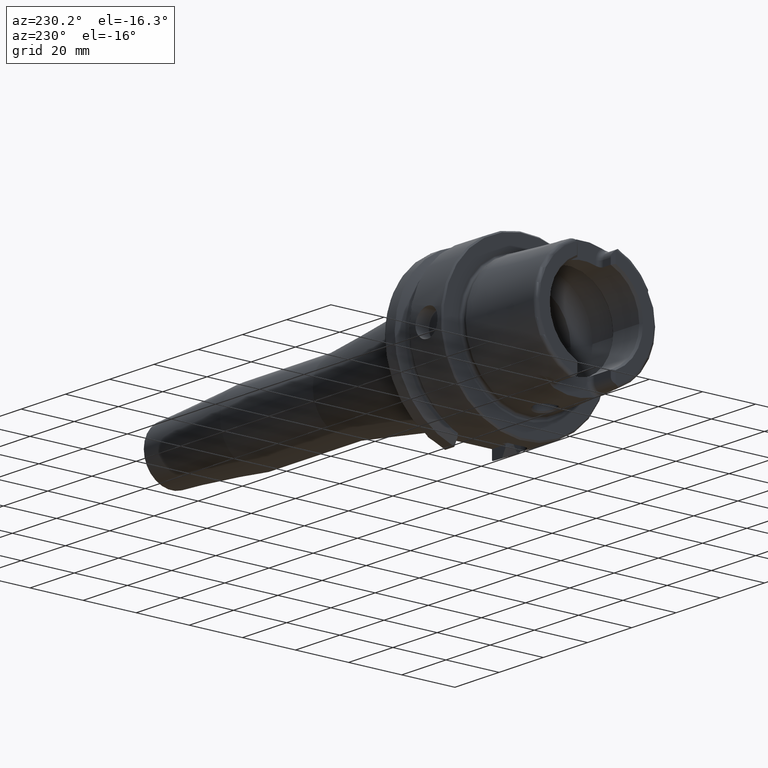
[diagram: clean part render]
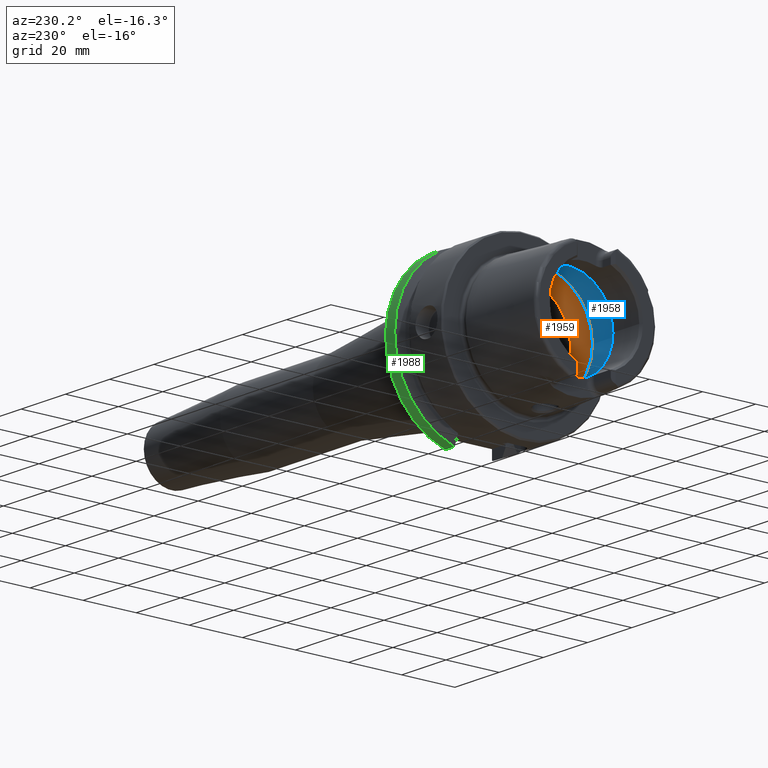
[diagram: same view with three faces highlighted in distinct colors, each labeled with its STEP entity id]
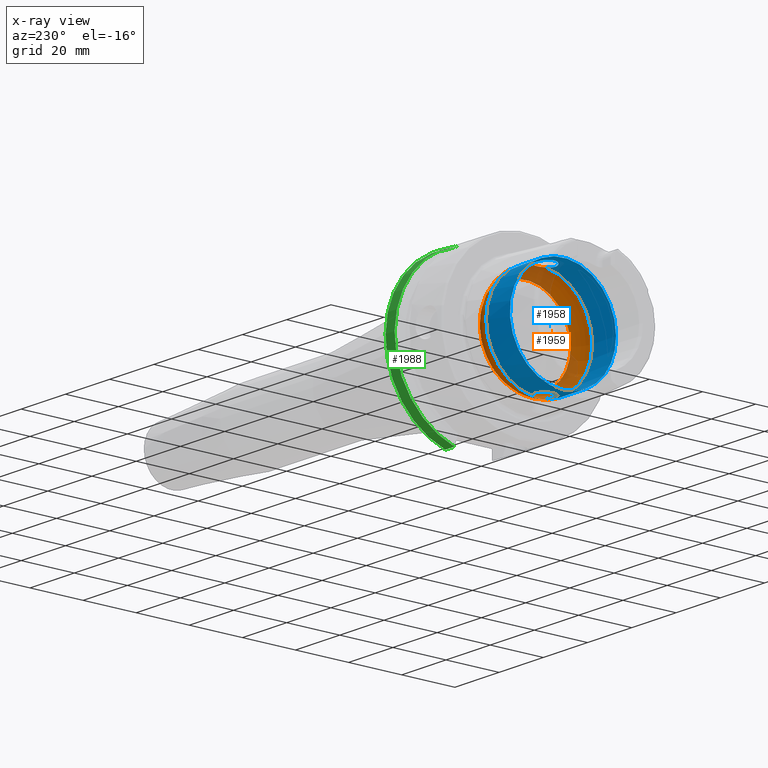
[diagram: x-ray of the same camera — body ghosted, the three highlighted faces saturated]
A machine part, auxiliary view with three faces highlighted in distinct colors.
The next image is the same camera in x-ray (body ghosted, the three faces saturated) — at least one of them is partly hidden behind the body in this view.
Their STEP definitions:

[orange] entity #1959 — the highlighted toroidal blend (fillet) surface has major radius 12 mm and minor (blend) radius 8 mm.
#49=B_SPLINE_CURVE_WITH_KNOTS('',3,(#3445,#3446,#3447,#3448,#3449,#3450,
#3451,#3452,#3453,#3454,#3455,#3456),.UNSPECIFIED.,.F.,.F.,(4,2,2,2,2,4),
(-0.560647090003115,-0.432465132423936,-0.371738630353782,-0.32053783623797,
-0.287500355516274,-0.280385270121909),.UNSPECIFIED.);
#51=B_SPLINE_CURVE_WITH_KNOTS('',3,(#3489,#3490,#3491,#3492,#3493,#3494,
#3495,#3496,#3497,#3498),.UNSPECIFIED.,.F.,.F.,(4,2,2,2,4),(-0.280385270121909,
-0.256917987419631,-0.21744735037608,-0.138661357565599,0.),
 .UNSPECIFIED.);
#54=B_SPLINE_CURVE_WITH_KNOTS('',3,(#3614,#3615,#3616,#3617,#3618,#3619,
#3620,#3621,#3622,#3623,#3624,#3625),.UNSPECIFIED.,.F.,.F.,(4,2,2,2,2,4),
(-0.560647090003256,-0.432465132424011,-0.371738630353825,-0.32053783623799,
-0.287500355516289,-0.280385270121924),.UNSPECIFIED.);
#56=B_SPLINE_CURVE_WITH_KNOTS('',3,(#3658,#3659,#3660,#3661,#3662,#3663,
#3664,#3665,#3666,#3667),.UNSPECIFIED.,.F.,.F.,(4,2,2,2,4),(-0.280385270121924,
-0.256917987419636,-0.217447350376074,-0.138661357565593,0.),
 .UNSPECIFIED.);
#445=FACE_OUTER_BOUND('',#567,.T.);
#567=EDGE_LOOP('',(#1461,#1462,#1463,#1464,#1465,#1466,#1467,#1468,#1469,
#1470,#1471));
#692=CIRCLE('',#2139,20.);
#695=CIRCLE('',#2142,20.);
#696=CIRCLE('',#2143,20.);
#697=CIRCLE('',#2145,17.);
#698=CIRCLE('',#2146,17.);
#699=CIRCLE('',#2147,8.);
#859=VERTEX_POINT('',#3442);
#860=VERTEX_POINT('',#3444);
#861=VERTEX_POINT('',#3457);
#864=VERTEX_POINT('',#3612);
#865=VERTEX_POINT('',#3613);
#866=VERTEX_POINT('',#3626);
#867=VERTEX_POINT('',#3670);
#870=VERTEX_POINT('',#3680);
#871=VERTEX_POINT('',#3681);
#1083=EDGE_CURVE('',#860,#859,#49,.T.);
#1085=EDGE_CURVE('',#859,#861,#51,.T.);
#1089=EDGE_CURVE('',#864,#865,#54,.T.);
#1091=EDGE_CURVE('',#865,#866,#56,.T.);
#1093=EDGE_CURVE('',#867,#864,#692,.T.);
#1097=EDGE_CURVE('',#861,#867,#695,.T.);
#1098=EDGE_CURVE('',#866,#860,#696,.T.);
#1099=EDGE_CURVE('',#870,#871,#697,.T.);
#1100=EDGE_CURVE('',#871,#870,#698,.T.);
#1101=EDGE_CURVE('',#871,#859,#699,.T.);
#1461=ORIENTED_EDGE('',*,*,#1099,.F.);
#1462=ORIENTED_EDGE('',*,*,#1100,.F.);
#1463=ORIENTED_EDGE('',*,*,#1101,.T.);
#1464=ORIENTED_EDGE('',*,*,#1085,.T.);
#1465=ORIENTED_EDGE('',*,*,#1097,.T.);
#1466=ORIENTED_EDGE('',*,*,#1093,.T.);
#1467=ORIENTED_EDGE('',*,*,#1089,.T.);
#1468=ORIENTED_EDGE('',*,*,#1091,.T.);
#1469=ORIENTED_EDGE('',*,*,#1098,.T.);
#1470=ORIENTED_EDGE('',*,*,#1083,.T.);
#1471=ORIENTED_EDGE('',*,*,#1101,.F.);
#1907=TOROIDAL_SURFACE('',#2144,12.,8.);
#1959=ADVANCED_FACE('',(#445),#1907,.F.);
#2139=AXIS2_PLACEMENT_3D('',#3671,#2500,#2501);
#2142=AXIS2_PLACEMENT_3D('',#3677,#2507,#2508);
#2143=AXIS2_PLACEMENT_3D('',#3678,#2509,#2510);
#2144=AXIS2_PLACEMENT_3D('',#3679,#2511,#2512);
#2145=AXIS2_PLACEMENT_3D('',#3682,#2513,#2514);
#2146=AXIS2_PLACEMENT_3D('',#3683,#2515,#2516);
#2147=AXIS2_PLACEMENT_3D('',#3684,#2517,#2518);
#2500=DIRECTION('center_axis',(-1.,0.,0.));
#2501=DIRECTION('ref_axis',(0.,0.,1.));
#2507=DIRECTION('center_axis',(-1.,0.,0.));
#2508=DIRECTION('ref_axis',(0.,0.,1.));
#2509=DIRECTION('center_axis',(-1.,0.,0.));
#2510=DIRECTION('ref_axis',(0.,0.,1.));
#2511=DIRECTION('center_axis',(-1.,0.,0.));
#2512=DIRECTION('ref_axis',(0.,0.,1.));
#2513=DIRECTION('center_axis',(-1.,0.,0.));
#2514=DIRECTION('ref_axis',(0.,0.,1.));
#2515=DIRECTION('center_axis',(-1.,0.,0.));
#2516=DIRECTION('ref_axis',(0.,0.,1.));
#2517=DIRECTION('center_axis',(0.,1.,-1.22464679914735E-16));
#2518=DIRECTION('ref_axis',(0.,-1.22464679914735E-16,-1.));
#3442=CARTESIAN_POINT('',(-5.25,3.07683831259085E-16,-19.9378825251564));
#3444=CARTESIAN_POINT('',(-6.2449979983984,2.54410376580264,-19.8375284758165));
#3445=CARTESIAN_POINT('Ctrl Pts',(-6.2449979983984,2.54410376580263,-19.8375284758165));
#3446=CARTESIAN_POINT('Ctrl Pts',(-5.9563832733696,2.23156378381208,-19.877610794847));
#3447=CARTESIAN_POINT('Ctrl Pts',(-5.72238184052007,1.87139505615745,-19.9007586679726));
#3448=CARTESIAN_POINT('Ctrl Pts',(-5.47415257397377,1.29299577523533,-19.9221291461079));
#3449=CARTESIAN_POINT('Ctrl Pts',(-5.40951125063364,1.10084807786171,-19.9269865934584));
#3450=CARTESIAN_POINT('Ctrl Pts',(-5.31953029252225,0.738763665580492,-19.9333991732415));
#3451=CARTESIAN_POINT('Ctrl Pts',(-5.28971989928313,0.57048989328573,-19.9353426103026));
#3452=CARTESIAN_POINT('Ctrl Pts',(-5.25970604483208,0.291260075331645,-19.9372753146995));
#3453=CARTESIAN_POINT('Ctrl Pts',(-5.25276504295341,0.181279004510485,-19.9377089305339));
#3454=CARTESIAN_POINT('Ctrl Pts',(-5.25022501552319,0.0474369436209427,
-19.9378684144199));
#3455=CARTESIAN_POINT('Ctrl Pts',(-5.25,0.0237178817918345,-19.9378825251564));
#3456=CARTESIAN_POINT('Ctrl Pts',(-5.25,1.73633857888389E-16,-19.9378825251564));
#3457=CARTESIAN_POINT('',(-6.2449979983984,-2.54410376580264,-19.8375284758165));
#3489=CARTESIAN_POINT('Ctrl Pts',(-5.25,1.73633857888389E-16,-19.9378825251564));
#3490=CARTESIAN_POINT('Ctrl Pts',(-5.25,-0.0782273446147222,-19.9378825251564));
#3491=CARTESIAN_POINT('Ctrl Pts',(-5.25244785081342,-0.15644185230388,-19.9377296492436));
#3492=CARTESIAN_POINT('Ctrl Pts',(-5.26557067654327,-0.365860616871457,
-19.9368989370107));
#3493=CARTESIAN_POINT('Ctrl Pts',(-5.2807081654794,-0.496671474530444,-19.9359382432917));
#3494=CARTESIAN_POINT('Ctrl Pts',(-5.34656166936447,-0.885366242555149,
-19.9315392091305));
#3495=CARTESIAN_POINT('Ctrl Pts',(-5.41752174824152,-1.13897710923821,-19.9266508951874));
#3496=CARTESIAN_POINT('Ctrl Pts',(-5.68473945553282,-1.81246400136134,-19.9044561094296));
#3497=CARTESIAN_POINT('Ctrl Pts',(-5.93280828188796,-2.20603449935731,-19.880884849314));
#3498=CARTESIAN_POINT('Ctrl Pts',(-6.2449979983984,-2.54410376580263,-19.8375284758165));
#3612=CARTESIAN_POINT('',(-6.2449979983984,-2.54410376580264,19.8375284758165));
#3613=CARTESIAN_POINT('',(-5.25,4.81156178856766E-16,19.9378825251564));
#3614=CARTESIAN_POINT('Ctrl Pts',(-6.2449979983984,-2.54410376580264,19.8375284758165));
#3615=CARTESIAN_POINT('Ctrl Pts',(-5.9563832733696,-2.23156378381209,19.877610794847));
#3616=CARTESIAN_POINT('Ctrl Pts',(-5.72238184052007,-1.87139505615746,19.9007586679726));
#3617=CARTESIAN_POINT('Ctrl Pts',(-5.47415257397376,-1.29299577523533,19.9221291461079));
#3618=CARTESIAN_POINT('Ctrl Pts',(-5.40951125063363,-1.10084807786172,19.9269865934584));
#3619=CARTESIAN_POINT('Ctrl Pts',(-5.31953029252225,-0.738763665580501,
19.9333991732415));
#3620=CARTESIAN_POINT('Ctrl Pts',(-5.28971989928313,-0.570489893285745,
19.9353426103026));
#3621=CARTESIAN_POINT('Ctrl Pts',(-5.25970604483207,-0.291260075331669,
19.9372753146995));
#3622=CARTESIAN_POINT('Ctrl Pts',(-5.2527650429534,-0.181279004510531,19.9377089305339));
#3623=CARTESIAN_POINT('Ctrl Pts',(-5.25022501552319,-0.0474369436209401,
19.9378684144199));
#3624=CARTESIAN_POINT('Ctrl Pts',(-5.25,-0.0237178817918311,19.9378825251564));
#3625=CARTESIAN_POINT('Ctrl Pts',(-5.25,5.15920899939407E-16,19.9378825251564));
#3626=CARTESIAN_POINT('',(-6.2449979983984,2.54410376580264,19.8375284758165));
#3658=CARTESIAN_POINT('Ctrl Pts',(-5.25,5.15920899939407E-16,19.9378825251564));
#3659=CARTESIAN_POINT('Ctrl Pts',(-5.25,0.0782273446147462,19.9378825251564));
#3660=CARTESIAN_POINT('Ctrl Pts',(-5.25244785081342,0.156441852303891,19.9377296492436));
#3661=CARTESIAN_POINT('Ctrl Pts',(-5.26557067654326,0.36586061687142,19.9368989370107));
#3662=CARTESIAN_POINT('Ctrl Pts',(-5.28070816547939,0.496671474530425,19.9359382432917));
#3663=CARTESIAN_POINT('Ctrl Pts',(-5.34656166936446,0.885366242555101,19.9315392091305));
#3664=CARTESIAN_POINT('Ctrl Pts',(-5.41752174824151,1.13897710923819,19.9266508951874));
#3665=CARTESIAN_POINT('Ctrl Pts',(-5.68473945553283,1.81246400136138,19.9044561094296));
#3666=CARTESIAN_POINT('Ctrl Pts',(-5.93280828188797,2.20603449935733,19.880884849314));
#3667=CARTESIAN_POINT('Ctrl Pts',(-6.2449979983984,2.54410376580264,19.8375284758165));
#3670=CARTESIAN_POINT('',(-6.2449979983984,-20.,2.44929359829471E-15));
#3671=CARTESIAN_POINT('Origin',(-6.2449979983984,0.,0.));
#3677=CARTESIAN_POINT('Origin',(-6.2449979983984,0.,0.));
#3678=CARTESIAN_POINT('Origin',(-6.2449979983984,0.,0.));
#3679=CARTESIAN_POINT('Origin',(-6.2449979983984,0.,0.));
#3680=CARTESIAN_POINT('',(0.,-17.,2.0818995585505E-15));
#3681=CARTESIAN_POINT('',(0.,-2.0818995585505E-15,-17.));
#3682=CARTESIAN_POINT('Origin',(0.,0.,0.));
#3683=CARTESIAN_POINT('Origin',(0.,0.,0.));
#3684=CARTESIAN_POINT('Origin',(-6.2449979983984,-1.46957615897682E-15,
-12.));

[blue] entity #1958 — the highlighted cylindrical surface (bore or boss wall) has radius 20 mm, axis along (-1, 0, 0).
#50=B_SPLINE_CURVE_WITH_KNOTS('',3,(#3458,#3459,#3460,#3461,#3462,#3463,
#3464,#3465,#3466,#3467,#3468,#3469,#3470,#3471,#3472,#3473,#3474,#3475,
#3476,#3477,#3478,#3479,#3480,#3481,#3482,#3483,#3484,#3485,#3486,#3487,
#3488),.UNSPECIFIED.,.F.,.F.,(4,2,2,2,2,2,2,2,2,2,2,3,2,2,4),(-1.43107314142755,
-1.4161913421645,-1.27456976724955,-1.1329481923346,-0.991326617419658,
-0.849705042504712,-0.708089569336007,-0.566474096167302,-0.424858622998598,
-0.283243149829893,-0.141621574914946,0.,0.141621574914946,0.283243149829893,
0.298124949100151),.UNSPECIFIED.);
#55=B_SPLINE_CURVE_WITH_KNOTS('',3,(#3627,#3628,#3629,#3630,#3631,#3632,
#3633,#3634,#3635,#3636,#3637,#3638,#3639,#3640,#3641,#3642,#3643,#3644,
#3645,#3646,#3647,#3648,#3649,#3650,#3651,#3652,#3653,#3654,#3655,#3656,
#3657),.UNSPECIFIED.,.F.,.F.,(4,2,2,3,2,2,2,2,2,2,2,2,2,2,4),(-0.298124949092949,
-0.283243149829893,-0.141621574914946,0.,0.141621574914946,0.283243149829893,
0.424858622998598,0.566474096167302,0.708089569336007,0.849705042504712,
0.991326617419658,1.1329481923346,1.27456976724955,1.4161913421645,1.43107314143475),
 .UNSPECIFIED.);
#108=CYLINDRICAL_SURFACE('',#2138,20.);
#227=LINE('',#3673,#334);
#334=VECTOR('',#2502,20.);
#444=FACE_OUTER_BOUND('',#566,.T.);
#566=EDGE_LOOP('',(#1452,#1453,#1454,#1455,#1456,#1457,#1458,#1459,#1460));
#692=CIRCLE('',#2139,20.);
#693=CIRCLE('',#2140,20.);
#694=CIRCLE('',#2141,20.);
#695=CIRCLE('',#2142,20.);
#696=CIRCLE('',#2143,20.);
#860=VERTEX_POINT('',#3444);
#861=VERTEX_POINT('',#3457);
#864=VERTEX_POINT('',#3612);
#866=VERTEX_POINT('',#3626);
#867=VERTEX_POINT('',#3670);
#868=VERTEX_POINT('',#3672);
#869=VERTEX_POINT('',#3674);
#1084=EDGE_CURVE('',#861,#860,#50,.T.);
#1090=EDGE_CURVE('',#866,#864,#55,.T.);
#1093=EDGE_CURVE('',#867,#864,#692,.T.);
#1094=EDGE_CURVE('',#867,#868,#227,.T.);
#1095=EDGE_CURVE('',#868,#869,#693,.T.);
#1096=EDGE_CURVE('',#869,#868,#694,.T.);
#1097=EDGE_CURVE('',#861,#867,#695,.T.);
#1098=EDGE_CURVE('',#866,#860,#696,.T.);
#1452=ORIENTED_EDGE('',*,*,#1090,.T.);
#1453=ORIENTED_EDGE('',*,*,#1093,.F.);
#1454=ORIENTED_EDGE('',*,*,#1094,.T.);
#1455=ORIENTED_EDGE('',*,*,#1095,.T.);
#1456=ORIENTED_EDGE('',*,*,#1096,.T.);
#1457=ORIENTED_EDGE('',*,*,#1094,.F.);
#1458=ORIENTED_EDGE('',*,*,#1097,.F.);
#1459=ORIENTED_EDGE('',*,*,#1084,.T.);
#1460=ORIENTED_EDGE('',*,*,#1098,.F.);
#1958=ADVANCED_FACE('',(#444),#108,.F.);
#2138=AXIS2_PLACEMENT_3D('',#3669,#2498,#2499);
#2139=AXIS2_PLACEMENT_3D('',#3671,#2500,#2501);
#2140=AXIS2_PLACEMENT_3D('',#3675,#2503,#2504);
#2141=AXIS2_PLACEMENT_3D('',#3676,#2505,#2506);
#2142=AXIS2_PLACEMENT_3D('',#3677,#2507,#2508);
#2143=AXIS2_PLACEMENT_3D('',#3678,#2509,#2510);
#2498=DIRECTION('center_axis',(-1.,0.,0.));
#2499=DIRECTION('ref_axis',(0.,1.,0.));
#2500=DIRECTION('center_axis',(-1.,0.,0.));
#2501=DIRECTION('ref_axis',(0.,0.,1.));
#2502=DIRECTION('',(-1.,0.,0.));
#2503=DIRECTION('center_axis',(-1.,0.,0.));
#2504=DIRECTION('ref_axis',(0.,0.,1.));
#2505=DIRECTION('center_axis',(-1.,0.,0.));
#2506=DIRECTION('ref_axis',(0.,0.,1.));
#2507=DIRECTION('center_axis',(-1.,0.,0.));
#2508=DIRECTION('ref_axis',(0.,0.,1.));
#2509=DIRECTION('center_axis',(-1.,0.,0.));
#2510=DIRECTION('ref_axis',(0.,0.,1.));
#3444=CARTESIAN_POINT('',(-6.2449979983984,2.54410376580264,-19.8375284758165));
#3457=CARTESIAN_POINT('',(-6.2449979983984,-2.54410376580264,-19.8375284758165));
#3458=CARTESIAN_POINT('Ctrl Pts',(-6.2449979983984,-2.54410376580264,-19.8375284758165));
#3459=CARTESIAN_POINT('Ctrl Pts',(-6.27894943420456,-2.58086966932454,-19.8328133585216));
#3460=CARTESIAN_POINT('Ctrl Pts',(-6.31342869219743,-2.61672955109653,-19.8281105439642));
#3461=CARTESIAN_POINT('Ctrl Pts',(-6.68067160381732,-2.98397246271642,-19.7789868876592));
#3462=CARTESIAN_POINT('Ctrl Pts',(-7.10159661632629,-3.27238367725626,-19.731429741537));
#3463=CARTESIAN_POINT('Ctrl Pts',(-8.0251754070192,-3.65542701546408,-19.6640704965084));
#3464=CARTESIAN_POINT('Ctrl Pts',(-8.52792808361685,-3.75,-19.6452920568771));
#3465=CARTESIAN_POINT('Ctrl Pts',(-9.47207191638316,-3.75,-19.6452920568771));
#3466=CARTESIAN_POINT('Ctrl Pts',(-9.97482459298081,-3.65542701546408,-19.6640704965084));
#3467=CARTESIAN_POINT('Ctrl Pts',(-10.8984033836737,-3.27238367725626,-19.731429741537));
#3468=CARTESIAN_POINT('Ctrl Pts',(-11.3193283961827,-2.98397246271642,-19.7789868876592));
#3469=CARTESIAN_POINT('Ctrl Pts',(-11.9839581446669,-2.31934271423217,-19.8678900149943));
#3470=CARTESIAN_POINT('Ctrl Pts',(-12.2723805817074,-1.89841159537053,-19.9150796801946));
#3471=CARTESIAN_POINT('Ctrl Pts',(-12.6554320620407,-0.974811677040414,
-19.9815942165963));
#3472=CARTESIAN_POINT('Ctrl Pts',(-12.75,-0.472051577229017,-20.));
#3473=CARTESIAN_POINT('Ctrl Pts',(-12.75,0.472051577229015,-20.));
#3474=CARTESIAN_POINT('Ctrl Pts',(-12.6554320620407,0.974811677040408,-19.9815942165963));
#3475=CARTESIAN_POINT('Ctrl Pts',(-12.2723805817074,1.89841159537052,-19.9150796801946));
#3476=CARTESIAN_POINT('Ctrl Pts',(-11.9839581446669,2.31934271423217,-19.8678900149943));
#3477=CARTESIAN_POINT('Ctrl Pts',(-11.3193283961827,2.98397246271642,-19.7789868876592));
#3478=CARTESIAN_POINT('Ctrl Pts',(-10.8984033836737,3.27238367725626,-19.731429741537));
#3479=CARTESIAN_POINT('Ctrl Pts',(-9.97482459298081,3.65542701546408,-19.6640704965084));
#3480=CARTESIAN_POINT('Ctrl Pts',(-9.47207191638316,3.75,-19.6452920568771));
#3481=CARTESIAN_POINT('Ctrl Pts',(-9.,3.75,-19.6452920568771));
#3482=CARTESIAN_POINT('Ctrl Pts',(-8.52792808361685,3.75,-19.6452920568771));
#3483=CARTESIAN_POINT('Ctrl Pts',(-8.0251754070192,3.65542701546408,-19.6640704965084));
#3484=CARTESIAN_POINT('Ctrl Pts',(-7.10159661632629,3.27238367725626,-19.731429741537));
#3485=CARTESIAN_POINT('Ctrl Pts',(-6.68067160381732,2.98397246271642,-19.7789868876592));
#3486=CARTESIAN_POINT('Ctrl Pts',(-6.31342869218053,2.61672955107963,-19.8281105439665));
#3487=CARTESIAN_POINT('Ctrl Pts',(-6.27894943419011,2.5808696693089,-19.8328133585236));
#3488=CARTESIAN_POINT('Ctrl Pts',(-6.2449979983984,2.54410376580264,-19.8375284758165));
#3612=CARTESIAN_POINT('',(-6.2449979983984,-2.54410376580264,19.8375284758165));
#3626=CARTESIAN_POINT('',(-6.2449979983984,2.54410376580264,19.8375284758165));
#3627=CARTESIAN_POINT('Ctrl Pts',(-6.2449979983984,2.54410376580264,19.8375284758165));
#3628=CARTESIAN_POINT('Ctrl Pts',(-6.27894943420456,2.58086966932454,19.8328133585216));
#3629=CARTESIAN_POINT('Ctrl Pts',(-6.31342869219742,2.61672955109653,19.8281105439642));
#3630=CARTESIAN_POINT('Ctrl Pts',(-6.68067160381731,2.98397246271642,19.7789868876592));
#3631=CARTESIAN_POINT('Ctrl Pts',(-7.10159661632629,3.27238367725626,19.731429741537));
#3632=CARTESIAN_POINT('Ctrl Pts',(-8.02517540701919,3.65542701546408,19.6640704965084));
#3633=CARTESIAN_POINT('Ctrl Pts',(-8.52792808361684,3.75,19.6452920568771));
#3634=CARTESIAN_POINT('Ctrl Pts',(-9.,3.75,19.6452920568771));
#3635=CARTESIAN_POINT('Ctrl Pts',(-9.47207191638315,3.75,19.6452920568771));
#3636=CARTESIAN_POINT('Ctrl Pts',(-9.97482459298081,3.65542701546408,19.6640704965084));
#3637=CARTESIAN_POINT('Ctrl Pts',(-10.8984033836737,3.27238367725626,19.731429741537));
#3638=CARTESIAN_POINT('Ctrl Pts',(-11.3193283961827,2.98397246271642,19.7789868876592));
#3639=CARTESIAN_POINT('Ctrl Pts',(-11.9839581446669,2.31934271423217,19.8678900149943));
#3640=CARTESIAN_POINT('Ctrl Pts',(-12.2723805817074,1.89841159537052,19.9150796801946));
#3641=CARTESIAN_POINT('Ctrl Pts',(-12.6554320620407,0.97481167704041,19.9815942165963));
#3642=CARTESIAN_POINT('Ctrl Pts',(-12.75,0.472051577229015,20.));
#3643=CARTESIAN_POINT('Ctrl Pts',(-12.75,-0.472051577229017,20.));
#3644=CARTESIAN_POINT('Ctrl Pts',(-12.6554320620407,-0.974811677040414,
19.9815942165963));
#3645=CARTESIAN_POINT('Ctrl Pts',(-12.2723805817074,-1.89841159537053,19.9150796801946));
#3646=CARTESIAN_POINT('Ctrl Pts',(-11.9839581446669,-2.31934271423217,19.8678900149943));
#3647=CARTESIAN_POINT('Ctrl Pts',(-11.3193283961827,-2.98397246271642,19.7789868876592));
#3648=CARTESIAN_POINT('Ctrl Pts',(-10.8984033836737,-3.27238367725626,19.731429741537));
#3649=CARTESIAN_POINT('Ctrl Pts',(-9.9748245929808,-3.65542701546408,19.6640704965084));
#3650=CARTESIAN_POINT('Ctrl Pts',(-9.47207191638315,-3.75,19.6452920568771));
#3651=CARTESIAN_POINT('Ctrl Pts',(-8.52792808361684,-3.75,19.6452920568771));
#3652=CARTESIAN_POINT('Ctrl Pts',(-8.02517540701919,-3.65542701546408,19.6640704965084));
#3653=CARTESIAN_POINT('Ctrl Pts',(-7.10159661632629,-3.27238367725626,19.731429741537));
#3654=CARTESIAN_POINT('Ctrl Pts',(-6.68067160381731,-2.98397246271642,19.7789868876592));
#3655=CARTESIAN_POINT('Ctrl Pts',(-6.31342869218052,-2.61672955107963,19.8281105439665));
#3656=CARTESIAN_POINT('Ctrl Pts',(-6.27894943419011,-2.5808696693089,19.8328133585236));
#3657=CARTESIAN_POINT('Ctrl Pts',(-6.2449979983984,-2.54410376580264,19.8375284758165));
#3669=CARTESIAN_POINT('Origin',(-11.5812812165501,0.,0.));
#3670=CARTESIAN_POINT('',(-6.2449979983984,-20.,2.44929359829471E-15));
#3671=CARTESIAN_POINT('Origin',(-6.2449979983984,0.,0.));
#3672=CARTESIAN_POINT('',(-16.9175644347018,-20.,2.44929359829471E-15));
#3673=CARTESIAN_POINT('',(-11.5812812165501,-20.,2.44929359829471E-15));
#3674=CARTESIAN_POINT('',(-16.9175644347018,-2.44929359829471E-15,-20.));
#3675=CARTESIAN_POINT('Origin',(-16.9175644347018,0.,0.));
#3676=CARTESIAN_POINT('Origin',(-16.9175644347018,0.,0.));
#3677=CARTESIAN_POINT('Origin',(-6.2449979983984,0.,0.));
#3678=CARTESIAN_POINT('Origin',(-6.2449979983984,0.,0.));

[green] entity #1988 — the highlighted cylindrical surface (partial cylindrical patch) has radius 31.5 mm, axis along (1, 0, 0).
#114=CYLINDRICAL_SURFACE('',#2201,31.5);
#249=LINE('',#3907,#356);
#263=LINE('',#4087,#370);
#356=VECTOR('',#2602,10.);
#370=VECTOR('',#2664,10.);
#474=FACE_OUTER_BOUND('',#596,.T.);
#596=EDGE_LOOP('',(#1620,#1621,#1622,#1623));
#723=CIRCLE('',#2198,31.5);
#725=CIRCLE('',#2202,31.5);
#907=VERTEX_POINT('',#3883);
#911=VERTEX_POINT('',#3903);
#936=VERTEX_POINT('',#4070);
#937=VERTEX_POINT('',#4085);
#1156=EDGE_CURVE('',#907,#911,#249,.T.);
#1192=EDGE_CURVE('',#907,#936,#723,.T.);
#1195=EDGE_CURVE('',#911,#937,#725,.T.);
#1196=EDGE_CURVE('',#937,#936,#263,.T.);
#1620=ORIENTED_EDGE('',*,*,#1156,.T.);
#1621=ORIENTED_EDGE('',*,*,#1195,.T.);
#1622=ORIENTED_EDGE('',*,*,#1196,.T.);
#1623=ORIENTED_EDGE('',*,*,#1192,.F.);
#1988=ADVANCED_FACE('',(#474),#114,.T.);
#2198=AXIS2_PLACEMENT_3D('',#4071,#2654,#2655);
#2201=AXIS2_PLACEMENT_3D('',#4084,#2660,#2661);
#2202=AXIS2_PLACEMENT_3D('',#4086,#2662,#2663);
#2602=DIRECTION('',(-1.,0.,0.));
#2654=DIRECTION('center_axis',(1.,0.,0.));
#2655=DIRECTION('ref_axis',(0.,0.,-1.));
#2660=DIRECTION('center_axis',(1.,0.,0.));
#2661=DIRECTION('ref_axis',(0.,1.,0.));
#2662=DIRECTION('center_axis',(1.,0.,0.));
#2663=DIRECTION('ref_axis',(0.,0.,-1.));
#2664=DIRECTION('',(1.,0.,0.));
#3883=CARTESIAN_POINT('',(25.5,9.,-30.1869176962472));
#3903=CARTESIAN_POINT('',(21.3774990747593,9.,-30.1869176962472));
#3907=CARTESIAN_POINT('',(23.4387495373797,9.,-30.1869176962472));
#4070=CARTESIAN_POINT('',(25.5,8.,30.4671954731642));
#4071=CARTESIAN_POINT('Origin',(25.5,0.,0.));
#4084=CARTESIAN_POINT('Origin',(23.4387495373797,0.,0.));
#4085=CARTESIAN_POINT('',(21.3774990747593,8.,30.4671954731642));
#4086=CARTESIAN_POINT('Origin',(21.3774990747593,0.,0.));
#4087=CARTESIAN_POINT('',(23.4387495373797,8.,30.4671954731642));